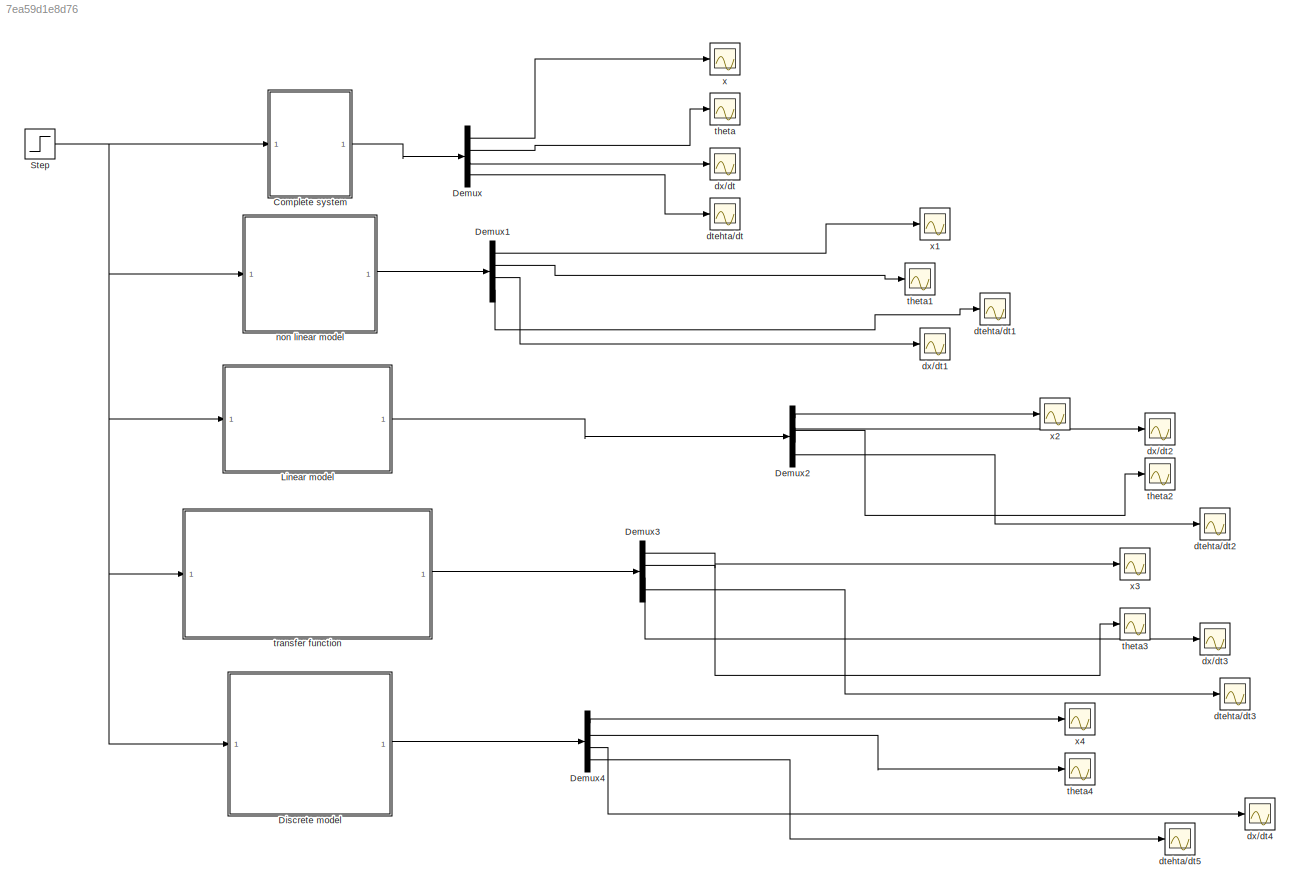
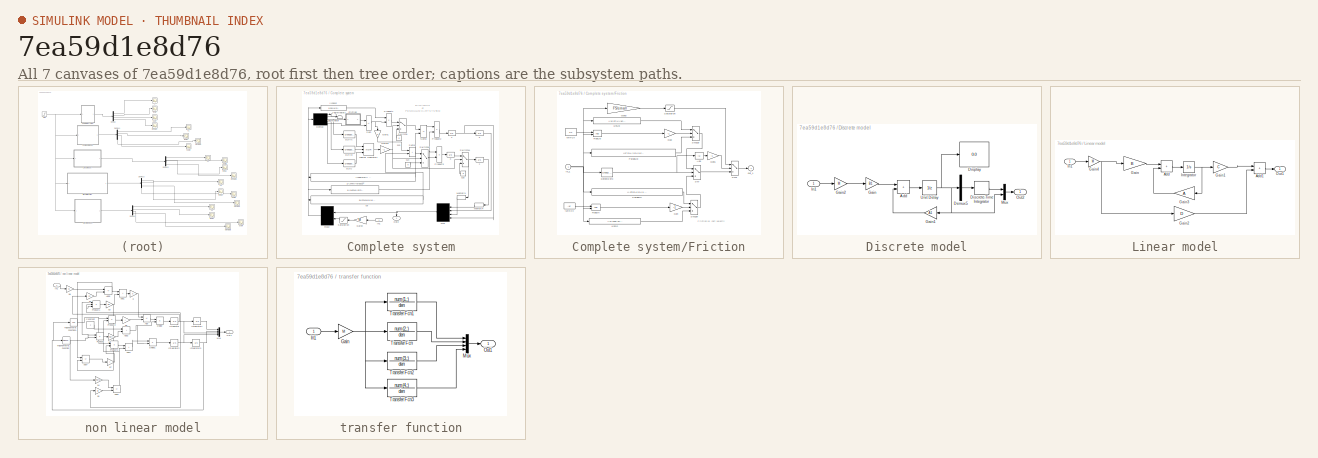
[diagram: thumbnail index - all 7 canvases of the model, root first then tree order]
MODEL mdl_7ea59d1e8d76
KIND model
CONFIG AbsTol = auto
CONFIG EnableMultiTasking = on
CONFIG FixedStep = 0.01
CONFIG MaxStep = auto
CONFIG MinStep = auto
CONFIG RelTol = 1e-6
CONFIG SampleTimeConstraint = Unconstrained
CONFIG SolverName = ode45
CONFIG StartTime = 0.0
CONFIG StopTime = 50
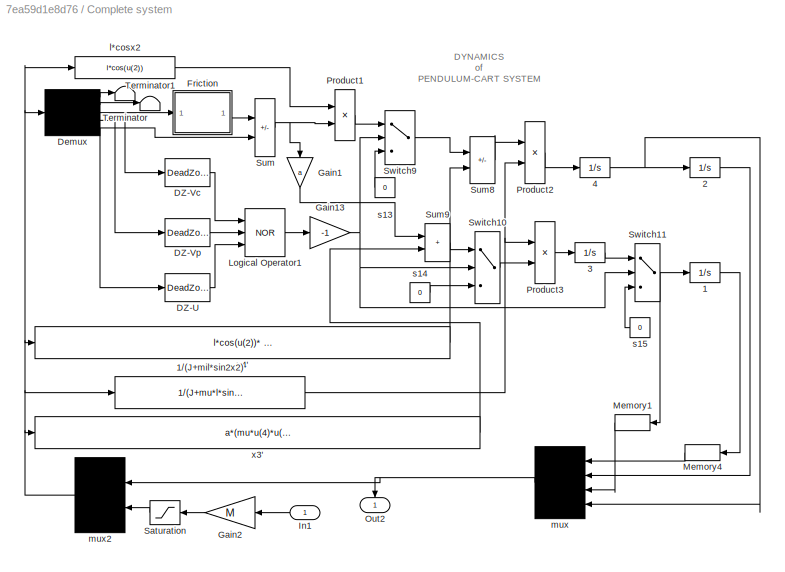
BLOCK [SubSystem] Complete system
  Ports = [1, 1]
  RequestExecContextInheritance = off
BLOCK [Integrator] Complete system/1
  Ports = [1, 1]
BLOCK [Fcn] Complete system/1//(J+mil*sin2x2)
  Expr = 1/(J+mu*l*sin(u[2])*sin(u[2]))
BLOCK [Integrator] Complete system/2
  InitialCondition = pi
  Ports = [1, 1]
BLOCK [Integrator] Complete system/3
  Ports = [1, 1]
BLOCK [Integrator] Complete system/4
  Ports = [1, 1]
BLOCK [DeadZone] Complete system/DZ-U
  LowerValue = -DZu
  UpperValue = DZu
BLOCK [DeadZone] Complete system/DZ-Vc
  LowerValue = -DZcv
  UpperValue = DZcv
BLOCK [DeadZone] Complete system/DZ-Vp
  LowerValue = -DZcp
  UpperValue = DZcp
BLOCK [Demux] Complete system/Demux
  DisplayOption = none
  Outputs = 5
  Ports = [1, 5]
BLOCK [SubSystem] Complete system/Friction
  NameLocation = top
  Ports = [1, 1]
  RequestExecContextInheritance = off
  ShowPortLabels = none
BLOCK [Constant] Complete system/Friction/-Min-Cv
  Value = -Xc
BLOCK [Abs] Complete system/Friction/Abs
BLOCK [DeadZone] Complete system/Friction/DetectZero
  LowerValue = -Z
  UpperValue = Z
BLOCK [Gain] Complete system/Friction/Gdn
  Gain = -1
  OutDataTypeStr = Inherit: Same as input
  ParamDataTypeStr = Inherit: Same as input
  SaturateOnIntegerOverflow = on
BLOCK [Gain] Complete system/Friction/Gdn1
  Gain = -1
  OutDataTypeStr = Inherit: Same as input
  ParamDataTypeStr = Inherit: Same as input
  SaturateOnIntegerOverflow = on
BLOCK [Gain] Complete system/Friction/Gdn3
  Gain = FS/small
  OutDataTypeStr = Inherit: Same as input
  ParamDataTypeStr = Inherit: Same as input
  SaturateOnIntegerOverflow = on
BLOCK [Gain] Complete system/Friction/Gup
  Gain = -1
  OutDataTypeStr = Inherit: Same as input
  ParamDataTypeStr = Inherit: Same as input
  SaturateOnIntegerOverflow = on
BLOCK [Fcn] Complete system/Friction/LinDn
  Expr = ((Yc-FCD)/Xc)*u(1)-FCD
BLOCK [Fcn] Complete system/Friction/LinUp
  Expr = ((Yc-FCU)/Xc)*u(1)+FCU
BLOCK [Constant] Complete system/Friction/Min-Cv
  Value = Xc
BLOCK [Fcn] Complete system/Friction/ParabDn
  Expr = ((-FSD+Yc)/(Xc*Xc))*u[1]*u(1)-2*((-FSD+Yc)/-Xc)*u(1)-FSD
BLOCK [Fcn] Complete system/Friction/ParabUp
  Expr = ((FSU-Yc)/(Xc*Xc))*u[1]*u(1)-2*((FSU-Yc)/Xc)*u(1)+FSU
BLOCK [RelationalOperator] Complete system/Friction/RopDn
  Ports = [2, 1]
BLOCK [RelationalOperator] Complete system/Friction/RopUp
  Ports = [2, 1]
BLOCK [Switch] Complete system/Friction/SW
BLOCK [Switch] Complete system/Friction/SW1
BLOCK [Switch] Complete system/Friction/SW1dn
BLOCK [Switch] Complete system/Friction/SW1up
BLOCK [Saturate] Complete system/Friction/Saturation
  LowerLimit = FSdl
  UpperLimit = FSul
BLOCK [Inport] Complete system/Friction/in_1
BLOCK [Outport] Complete system/Friction/out_1
  InitialOutput = 0
BLOCK [Gain] Complete system/Gain1
  Gain = a
  NameLocation = right
  OutDataTypeStr = Inherit: Same as input
  ParamDataTypeStr = Inherit: Same as input
  SaturateOnIntegerOverflow = on
BLOCK [Gain] Complete system/Gain13
  Gain = -1
  OutDataTypeStr = Inherit: Same as input
  ParamDataTypeStr = Inherit: Same as input
  SaturateOnIntegerOverflow = on
BLOCK [Gain] Complete system/Gain2
  Gain = M
  OutDataTypeStr = Inherit: Same as input
  ParamDataTypeStr = Inherit: Same as input
BLOCK [Inport] Complete system/In1
BLOCK [Logic] Complete system/Logical Operator1
  Inputs = 3
  Operator = NOR
  Ports = [3, 1]
BLOCK [Memory] Complete system/Memory1
BLOCK [Memory] Complete system/Memory4
BLOCK [Outport] Complete system/Out2
  NameLocation = right
BLOCK [Product] Complete system/Product1
  InputSameDT = on
  OutDataTypeStr = Inherit: Same as first input
  Ports = [2, 1]
  RndMeth = Zero
  SaturateOnIntegerOverflow = on
BLOCK [Product] Complete system/Product2
  InputSameDT = on
  OutDataTypeStr = Inherit: Same as first input
  Ports = [2, 1]
  RndMeth = Zero
  SaturateOnIntegerOverflow = on
BLOCK [Product] Complete system/Product3
  InputSameDT = on
  OutDataTypeStr = Inherit: Same as first input
  Ports = [2, 1]
  RndMeth = Zero
  SaturateOnIntegerOverflow = on
BLOCK [Saturate] Complete system/Saturation
  LowerLimit = -Um*M
  UpperLimit = Um*M
BLOCK [Sum] Complete system/Sum
  IconShape = rectangular
  InputSameDT = on
  Inputs = -+
  OutDataTypeStr = Inherit: Same as first input
  Ports = [2, 1]
  SaturateOnIntegerOverflow = on
BLOCK [Sum] Complete system/Sum8
  IconShape = rectangular
  InputSameDT = on
  Inputs = -+
  OutDataTypeStr = Inherit: Same as first input
  Ports = [2, 1]
  SaturateOnIntegerOverflow = on
BLOCK [Sum] Complete system/Sum9
  IconShape = rectangular
  InputSameDT = on
  OutDataTypeStr = Inherit: Same as first input
  Ports = [2, 1]
  SaturateOnIntegerOverflow = on
BLOCK [Switch] Complete system/Switch10
BLOCK [Switch] Complete system/Switch11
BLOCK [Switch] Complete system/Switch9
BLOCK [Terminator] Complete system/Terminator
BLOCK [Terminator] Complete system/Terminator1
BLOCK [Fcn] Complete system/l*cosx2
  Expr = l*cos(u(2))
BLOCK [Mux] Complete system/mux
  Ports = [4, 1]
BLOCK [Mux] Complete system/mux2
  Inputs = [4 1]
  Ports = [2, 1]
BLOCK [Constant] Complete system/s13
  NameLocation = top
  Value = 0
BLOCK [Constant] Complete system/s14
  NameLocation = top
  Value = 0
BLOCK [Constant] Complete system/s15
  NameLocation = top
  Value = 0
BLOCK [Fcn] Complete system/x3'
  Expr = a*(mu*u(4)*u(4)*sin(u(2)) )-l*cos(u(2))*(mu*g*sin(u(2))-fp*u(4))
BLOCK [Fcn] Complete system/x4'
  Expr = l*cos(u(2))* (-mu*u(4)*u(4)*sin(u(2))) + mu*g*sin(u(2))-fp*u(4)
BLOCK [Demux] Demux
  Ports = [1, 4]
BLOCK [Demux] Demux1
  Ports = [1, 4]
BLOCK [Demux] Demux2
  Ports = [1, 4]
BLOCK [Demux] Demux3
  Ports = [1, 4]
BLOCK [Demux] Demux4
  Ports = [1, 4]
BLOCK [SubSystem] Discrete model
  Ports = [1, 1]
  RequestExecContextInheritance = off
BLOCK [Sum] Discrete model/Add
  IconShape = rectangular
  Ports = [2, 1]
BLOCK [Demux] Discrete model/Demux5
  Outputs = 3
  Ports = [1, 3]
BLOCK [DiscreteIntegrator] Discrete model/Discrete-Time Integrator
  ICPrevOutput = DiscIntNeverNeededParam
  ICPrevScaledInput = DiscIntNeverNeededParam
  Ports = [1, 1]
  SampleTime = 0.1
BLOCK [Display] Discrete model/Display
  Decimation = 1
  Ports = [1]
BLOCK [Gain] Discrete model/Gain
  Gain = B1
  Multiplication = Matrix(K*u)
  SampleTime = 0.1
BLOCK [Gain] Discrete model/Gain1
  Gain = A1
  Multiplication = Matrix(K*u)
  NameLocation = top
  SampleTime = 0.1
BLOCK [Gain] Discrete model/Gain2
  Gain = M
  SampleTime = 0.1
BLOCK [Inport] Discrete model/In1
BLOCK [Mux] Discrete model/Mux
  DisplayOption = bar
  Inputs = 2
  Ports = [2, 1]
BLOCK [Outport] Discrete model/Out2
BLOCK [UnitDelay] Discrete model/Unit Delay
  HasFrameUpgradeWarning = on
  SampleTime = 0.1
BLOCK [SubSystem] Linear model
  Ports = [1, 1]
  RequestExecContextInheritance = off
BLOCK [Sum] Linear model/Add
  IconShape = rectangular
  Ports = [2, 1]
BLOCK [Sum] Linear model/Add1
  IconShape = rectangular
  Ports = [2, 1]
BLOCK [Gain] Linear model/Gain
  Gain = B
  Multiplication = Matrix(K*u)
BLOCK [Gain] Linear model/Gain1
  Gain = C
  Multiplication = Matrix(K*u)
BLOCK [Gain] Linear model/Gain2
  Gain = D
  Multiplication = Matrix(K*u)
BLOCK [Gain] Linear model/Gain3
  Gain = A
  Multiplication = Matrix(K*u)
  NameLocation = top
BLOCK [Gain] Linear model/Gain4
  Gain = M
BLOCK [Inport] Linear model/In1
BLOCK [Integrator] Linear model/Integrator
  Ports = [1, 1]
BLOCK [Outport] Linear model/Out1
BLOCK [Step] Step
  After = 0.3
  SampleTime = 0
BLOCK [Scope] dtehta//dt
  Floating = off
  NumInputPorts = 1
  Ports = [1]
  ScopeSpecificationString = C++SS(StrPVP('Location','[188, 390, 512, 629]'),StrPVP('Open','off'),MxPVP('AxesTitles',54,'struct(''axes1'',''%<SignalLabel>'')'),MxPVP('ScopeGraphics',57,'struct(''FigureColor'',''[0.5 0.5 0.5]'',''AxesColor'',''[0 0 0]'',''AxesTickColor'',''[1 1 1]'',''LineColors'',''[1 1 0;1 0 1;0 1 1;1 0 0;0 1 0;0 0 1]'',''LineStyles'',''-|-|-|-|-|-'',''LineWidths'',''[0.5 0.5 0.5 0.5 0.5 0.5]'',''MarkerStyle...<+286ch>  <repeated x4 — deduplicated; at blocks: dtehta/dt, theta1, theta2, theta3>
BLOCK [Scope] dtehta//dt1
  Floating = off
  NumInputPorts = 1
  Ports = [1]
  ScopeSpecificationString = C++SS(StrPVP('Location','[188, 390, 512, 629]'),StrPVP('Open','off'),MxPVP('AxesTitles',54,'struct(''axes1'',''%<SignalLabel>'')'),MxPVP('ScopeGraphics',57,'struct(''FigureColor'',''[0.5 0.5 0.5]'',''AxesColor'',''[0 0 0]'',''AxesTickColor'',''[1 1 1]'',''LineColors'',''[1 1 0;1 0 1;0 1 1;1 0 0;0 1 0;0 0 1]'',''LineStyles'',''-|-|-|-|-|-'',''LineWidths'',''[0.5 0.5 0.5 0.5 0.5 0.5]'',''MarkerStyle...<+287ch>
BLOCK [Scope] dtehta//dt2
  Floating = off
  NumInputPorts = 1
  Ports = [1]
  ScopeSpecificationString = C++SS(StrPVP('Location','[188, 390, 512, 629]'),StrPVP('Open','off'),MxPVP('AxesTitles',54,'struct(''axes1'',''%<SignalLabel>'')'),MxPVP('ScopeGraphics',57,'struct(''FigureColor'',''[0.5 0.5 0.5]'',''AxesColor'',''[0 0 0]'',''AxesTickColor'',''[1 1 1]'',''LineColors'',''[1 1 0;1 0 1;0 1 1;1 0 0;0 1 0;0 0 1]'',''LineStyles'',''-|-|-|-|-|-'',''LineWidths'',''[0.5 0.5 0.5 0.5 0.5 0.5]'',''MarkerStyle...<+287ch>
BLOCK [Scope] dtehta//dt3
  Floating = off
  NumInputPorts = 1
  Ports = [1]
  ScopeSpecificationString = Simulink.scopes.TimeScopeBlockCfg('CurrentConfiguration', extmgr.ConfigurationSet(extmgr.Configuration('Core','General UI',true),extmgr.Configuration('Core','Source UI',true),extmgr.Configuration('Sources','WiredSimulink',true,'DataLogging',true,'DataLoggingVariableName','dtheta3','DataLoggingLimitDataPoints',true,'DataLoggingSaveFormat','Array','DataLoggingDecimation','1','DataLoggingDecimateData...<+1683ch>
BLOCK [Scope] dtehta//dt5
  Floating = off
  NumInputPorts = 1
  Ports = [1]
  ScopeSpecificationString = Simulink.scopes.TimeScopeBlockCfg('CurrentConfiguration', extmgr.ConfigurationSet(extmgr.Configuration('Core','General UI',true),extmgr.Configuration('Core','Source UI',true),extmgr.Configuration('Sources','WiredSimulink',true,'DataLogging',true,'DataLoggingVariableName','dtheta4','DataLoggingLimitDataPoints',true,'DataLoggingSaveFormat','Array','DataLoggingDecimation','1','DataLoggingDecimateData...<+1685ch>
BLOCK [Scope] dx//dt
  Floating = off
  NumInputPorts = 1
  Ports = [1]
  ScopeSpecificationString = C++SS(StrPVP('Location','[188, 390, 512, 629]'),StrPVP('Open','off'),MxPVP('AxesTitles',54,'struct(''axes1'',''%<SignalLabel>'')'),MxPVP('ScopeGraphics',57,'struct(''FigureColor'',''[0.5 0.5 0.5]'',''AxesColor'',''[0 0 0]'',''AxesTickColor'',''[1 1 1]'',''LineColors'',''[1 1 0;1 0 1;0 1 1;1 0 0;0 1 0;0 0 1]'',''LineStyles'',''-|-|-|-|-|-'',''LineWidths'',''[0.5 0.5 0.5 0.5 0.5 0.5]'',''MarkerStyle...<+282ch>
BLOCK [Scope] dx//dt1
  Floating = off
  NumInputPorts = 1
  Ports = [1]
  ScopeSpecificationString = C++SS(StrPVP('Location','[188, 390, 512, 629]'),StrPVP('Open','off'),MxPVP('AxesTitles',54,'struct(''axes1'',''%<SignalLabel>'')'),MxPVP('ScopeGraphics',57,'struct(''FigureColor'',''[0.5 0.5 0.5]'',''AxesColor'',''[0 0 0]'',''AxesTickColor'',''[1 1 1]'',''LineColors'',''[1 1 0;1 0 1;0 1 1;1 0 0;0 1 0;0 0 1]'',''LineStyles'',''-|-|-|-|-|-'',''LineWidths'',''[0.5 0.5 0.5 0.5 0.5 0.5]'',''MarkerStyle...<+283ch>  <repeated x3 — deduplicated; at blocks: dx/dt1, dx/dt2, dx/dt3>
BLOCK [Scope] dx//dt2
  Floating = off
  NumInputPorts = 1
  Ports = [1]
BLOCK [Scope] dx//dt3
  Floating = off
  NumInputPorts = 1
  Ports = [1]
BLOCK [Scope] dx//dt4
  Floating = off
  NumInputPorts = 1
  Ports = [1]
  ScopeSpecificationString = Simulink.scopes.TimeScopeBlockCfg('CurrentConfiguration', extmgr.ConfigurationSet(extmgr.Configuration('Core','General UI',true),extmgr.Configuration('Core','Source UI',true),extmgr.Configuration('Sources','WiredSimulink',true,'DataLogging',true,'DataLoggingVariableName','dx4','DataLoggingLimitDataPoints',true,'DataLoggingSaveFormat','Array','DataLoggingDecimation','1','DataLoggingDecimateData',tr...<+1685ch>
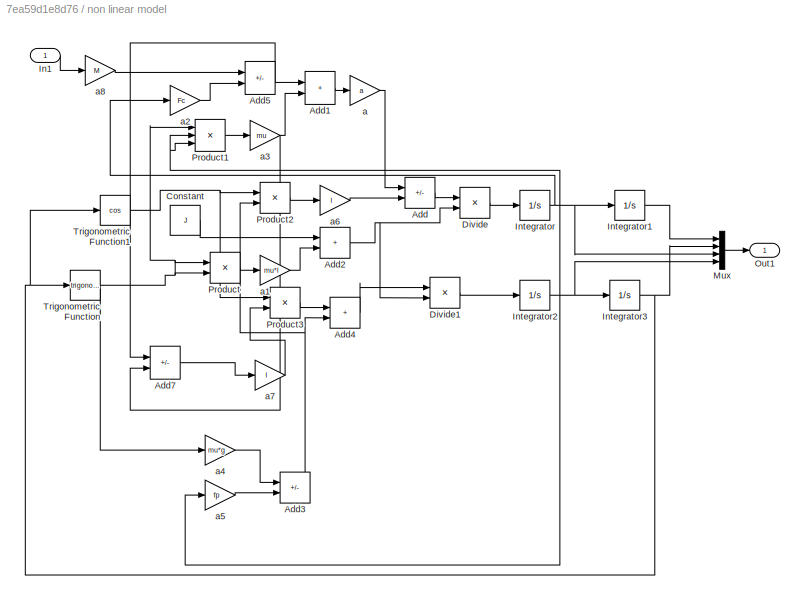
BLOCK [SubSystem] non linear model
  Ports = [1, 1]
  RequestExecContextInheritance = off
BLOCK [Sum] non linear model/Add
  IconShape = rectangular
  Inputs = +-
  Ports = [2, 1]
BLOCK [Sum] non linear model/Add1
  IconShape = rectangular
  Ports = [2, 1]
BLOCK [Sum] non linear model/Add2
  IconShape = rectangular
  Ports = [2, 1]
BLOCK [Sum] non linear model/Add3
  IconShape = rectangular
  Inputs = +-
  Ports = [2, 1]
BLOCK [Sum] non linear model/Add4
  IconShape = rectangular
  Ports = [2, 1]
BLOCK [Sum] non linear model/Add5
  IconShape = rectangular
  Inputs = +-
  Ports = [2, 1]
BLOCK [Sum] non linear model/Add7
  IconShape = rectangular
  Inputs = -+
  Ports = [2, 1]
BLOCK [Constant] non linear model/Constant
  Value = J
BLOCK [Product] non linear model/Divide
  Inputs = */
  Ports = [2, 1]
BLOCK [Product] non linear model/Divide1
  Inputs = */
  Ports = [2, 1]
BLOCK [Inport] non linear model/In1
BLOCK [Integrator] non linear model/Integrator
  Ports = [1, 1]
BLOCK [Integrator] non linear model/Integrator1
  Ports = [1, 1]
BLOCK [Integrator] non linear model/Integrator2
  Ports = [1, 1]
BLOCK [Integrator] non linear model/Integrator3
  InitialCondition = pi
  Ports = [1, 1]
BLOCK [Mux] non linear model/Mux
  DisplayOption = bar
  Ports = [4, 1]
BLOCK [Outport] non linear model/Out1
BLOCK [Product] non linear model/Product
  Ports = [2, 1]
  RndMeth = Zero
BLOCK [Product] non linear model/Product1
  Inputs = 3
  Ports = [3, 1]
  RndMeth = Zero
BLOCK [Product] non linear model/Product2
  Ports = [2, 1]
  RndMeth = Zero
BLOCK [Product] non linear model/Product3
  Ports = [2, 1]
  RndMeth = Zero
BLOCK [Trigonometry] non linear model/Trigonometric Function
  Ports = [1, 1]
BLOCK [Trigonometry] non linear model/Trigonometric Function1
  Operator = cos
  Ports = [1, 1]
BLOCK [Gain] non linear model/a
  Gain = a
BLOCK [Gain] non linear model/a1
  Gain = mu*l
BLOCK [Gain] non linear model/a2
  Gain = Fc
BLOCK [Gain] non linear model/a3
  Gain = mu
BLOCK [Gain] non linear model/a4
  Gain = mu*g
BLOCK [Gain] non linear model/a5
  Gain = fp
BLOCK [Gain] non linear model/a6
  Gain = l
BLOCK [Gain] non linear model/a7
  Gain = l
BLOCK [Gain] non linear model/a8
  Gain = M
BLOCK [Scope] theta
  Floating = off
  NumInputPorts = 1
  Ports = [1]
  ScopeSpecificationString = C++SS(StrPVP('Location','[188, 390, 512, 629]'),StrPVP('Open','off'),MxPVP('AxesTitles',54,'struct(''axes1'',''%<SignalLabel>'')'),MxPVP('ScopeGraphics',57,'struct(''FigureColor'',''[0.5 0.5 0.5]'',''AxesColor'',''[0 0 0]'',''AxesTickColor'',''[1 1 1]'',''LineColors'',''[1 1 0;1 0 1;0 1 1;1 0 0;0 1 0;0 0 1]'',''LineStyles'',''-|-|-|-|-|-'',''LineWidths'',''[0.5 0.5 0.5 0.5 0.5 0.5]'',''MarkerStyle...<+285ch>
BLOCK [Scope] theta1
  Floating = off
  NumInputPorts = 1
  Ports = [1]
BLOCK [Scope] theta2
  Floating = off
  NumInputPorts = 1
  Ports = [1]
BLOCK [Scope] theta3
  Floating = off
  NumInputPorts = 1
  Ports = [1]
BLOCK [Scope] theta4
  Floating = off
  NumInputPorts = 1
  Ports = [1]
  ScopeSpecificationString = Simulink.scopes.TimeScopeBlockCfg('CurrentConfiguration', extmgr.ConfigurationSet(extmgr.Configuration('Core','General UI',true),extmgr.Configuration('Core','Source UI',true),extmgr.Configuration('Sources','WiredSimulink',true,'DataLogging',true,'DataLoggingVariableName','theta4','DataLoggingLimitDataPoints',true,'DataLoggingSaveFormat','Array','DataLoggingDecimation','1','DataLoggingDecimateData'...<+1684ch>
BLOCK [SubSystem] transfer function
  Ports = [1, 1]
  RequestExecContextInheritance = off
BLOCK [Gain] transfer function/Gain
  Gain = M
BLOCK [Inport] transfer function/In1
BLOCK [Mux] transfer function/Mux
  DisplayOption = bar
  Ports = [4, 1]
BLOCK [Outport] transfer function/Out1
BLOCK [TransferFcn] transfer function/Transfer Fcn
  Denominator = den
  Numerator = num(2,:)
BLOCK [TransferFcn] transfer function/Transfer Fcn1
  Denominator = den
  Numerator = num(1,:)
BLOCK [TransferFcn] transfer function/Transfer Fcn2
  Denominator = den
  Numerator = num(3,:)
BLOCK [TransferFcn] transfer function/Transfer Fcn3
  Denominator = den
  Numerator = num(4,:)
BLOCK [Scope] x
  Floating = off
  NumInputPorts = 1
  Ports = [1]
  ScopeSpecificationString = C++SS(StrPVP('Location','[188, 390, 512, 629]'),StrPVP('Open','off'),MxPVP('AxesTitles',54,'struct(''axes1'',''%<SignalLabel>'')'),MxPVP('ScopeGraphics',57,'struct(''FigureColor'',''[0.5 0.5 0.5]'',''AxesColor'',''[0 0 0]'',''AxesTickColor'',''[1 1 1]'',''LineColors'',''[1 1 0;1 0 1;0 1 1;1 0 0;0 1 0;0 0 1]'',''LineStyles'',''-|-|-|-|-|-'',''LineWidths'',''[0.5 0.5 0.5 0.5 0.5 0.5]'',''MarkerStyle...<+281ch>
BLOCK [Scope] x1
  Floating = off
  NumInputPorts = 1
  Ports = [1]
  ScopeSpecificationString = Simulink.scopes.TimeScopeBlockCfg('CurrentConfiguration', extmgr.ConfigurationSet(extmgr.Configuration('Core','General UI',true),extmgr.Configuration('Core','Source UI',true),extmgr.Configuration('Sources','WiredSimulink',true,'DataLogging',true,'DataLoggingVariableName','x1','DataLoggingLimitDataPoints',true,'DataLoggingSaveFormat','Array','DataLoggingDecimation','1','DataLoggingDecimateData',tru...<+910ch>
BLOCK [Scope] x2
  Floating = off
  NumInputPorts = 1
  Ports = [1]
  ScopeSpecificationString = C++SS(StrPVP('Location','[188, 390, 512, 629]'),StrPVP('Open','off'),MxPVP('AxesTitles',54,'struct(''axes1'',''%<SignalLabel>'')'),MxPVP('ScopeGraphics',57,'struct(''FigureColor'',''[0.5 0.5 0.5]'',''AxesColor'',''[0 0 0]'',''AxesTickColor'',''[1 1 1]'',''LineColors'',''[1 1 0;1 0 1;0 1 1;1 0 0;0 1 0;0 0 1]'',''LineStyles'',''-|-|-|-|-|-'',''LineWidths'',''[0.5 0.5 0.5 0.5 0.5 0.5]'',''MarkerStyle...<+282ch>
BLOCK [Scope] x3
  Floating = off
  NumInputPorts = 1
  Ports = [1]
  ScopeSpecificationString = C++SS(StrPVP('Location','[1, 48, 1441, 859]'),StrPVP('Open','off'),MxPVP('AxesTitles',54,'struct(''axes1'',''%<SignalLabel>'')'),MxPVP('ScopeGraphics',57,'struct(''FigureColor'',''[0.5 0.5 0.5]'',''AxesColor'',''[0 0 0]'',''AxesTickColor'',''[1 1 1]'',''LineColors'',''[1 1 0;1 0 1;0 1 1;1 0 0;0 1 0;0 0 1]'',''LineStyles'',''-|-|-|-|-|-'',''LineWidths'',''[0.5 0.5 0.5 0.5 0.5 0.5]'',''MarkerStyles'...<+280ch>
BLOCK [Scope] x4
  Floating = off
  NumInputPorts = 1
  Ports = [1]
  ScopeSpecificationString = Simulink.scopes.TimeScopeBlockCfg('CurrentConfiguration', extmgr.ConfigurationSet(extmgr.Configuration('Core','General UI',true),extmgr.Configuration('Core','Source UI',true),extmgr.Configuration('Sources','WiredSimulink',true,'DataLogging',true,'DataLoggingVariableName','x4','DataLoggingLimitDataPoints',true,'DataLoggingSaveFormat','Array','DataLoggingDecimation','1','DataLoggingDecimateData',tru...<+1690ch>
ANNOTATION Complete system: DYNAMICS of PENDULUM-CART SYSTEM
ANNOTATION Complete system/Friction: Friction vs. cart velocity
NET Complete system/1//(J+mil*sin2x2):1 -> Complete system/Product2:2, Complete system/Product3:1
LINE Complete system/1:1 -> Complete system/Memory4:1
LINE Complete system/2:1 -> Complete system/mux:2
LINE Complete system/3:1 -> Complete system/Switch11:1
NET Complete system/4:1 -> Complete system/2:1, Complete system/mux:4
LINE Complete system/DZ-U:1 -> Complete system/Logical Operator1:3
LINE Complete system/DZ-Vc:1 -> Complete system/Logical Operator1:1
LINE Complete system/DZ-Vp:1 -> Complete system/Logical Operator1:2
LINE Complete system/Demux:1 -> Complete system/Terminator:1
LINE Complete system/Demux:2 -> Complete system/Terminator1:1
NET Complete system/Demux:3 -> Complete system/DZ-Vc:1, Complete system/Friction:1
LINE Complete system/Demux:4 -> Complete system/DZ-Vp:1
NET Complete system/Demux:5 -> Complete system/DZ-U:1, Complete system/Sum:2
LINE Complete system/Friction/-Min-Cv:1 -> Complete system/Friction/RopDn:1
LINE Complete system/Friction/Abs:1 -> Complete system/Friction/Gdn1:1
NET Complete system/Friction/DetectZero:1 -> Complete system/Friction/Abs:1, Complete system/Friction/SW:2
LINE Complete system/Friction/Gdn1:1 -> Complete system/Friction/SW1:2
LINE Complete system/Friction/Gdn3:1 -> Complete system/Friction/Saturation:1
LINE Complete system/Friction/Gdn:1 -> Complete system/Friction/SW1dn:2
LINE Complete system/Friction/Gup:1 -> Complete system/Friction/SW1up:2
LINE Complete system/Friction/LinDn:1 -> Complete system/Friction/SW1dn:3
LINE Complete system/Friction/LinUp:1 -> Complete system/Friction/SW1up:1
LINE Complete system/Friction/Min-Cv:1 -> Complete system/Friction/RopUp:1
LINE Complete system/Friction/ParabDn:1 -> Complete system/Friction/SW1dn:1
LINE Complete system/Friction/ParabUp:1 -> Complete system/Friction/SW1up:3
LINE Complete system/Friction/RopDn:1 -> Complete system/Friction/Gdn:1
LINE Complete system/Friction/RopUp:1 -> Complete system/Friction/Gup:1
LINE Complete system/Friction/SW1:1 -> Complete system/Friction/out_1:1
LINE Complete system/Friction/SW1dn:1 -> Complete system/Friction/SW:3
LINE Complete system/Friction/SW1up:1 -> Complete system/Friction/SW:1
LINE Complete system/Friction/SW:1 -> Complete system/Friction/SW1:3
LINE Complete system/Friction/Saturation:1 -> Complete system/Friction/SW1:1
NET Complete system/Friction/in_1:1 -> Complete system/Friction/DetectZero:1, Complete system/Friction/Gdn3:1, Complete system/Friction/LinDn:1, Complete system/Friction/LinUp:1, Complete system/Friction/ParabDn:1, Complete system/Friction/ParabUp:1, Complete system/Friction/RopDn:2, Complete system/Friction/RopUp:2
LINE Complete system/Friction:1 -> Complete system/Sum:1
NET Complete system/Gain13:1 -> Complete system/Switch10:2, Complete system/Switch11:2, Complete system/Switch9:2
LINE Complete system/Gain1:1 -> Complete system/Sum9:1
LINE Complete system/Gain2:1 -> Complete system/Saturation:1
LINE Complete system/In1:1 -> Complete system/Gain2:1
LINE Complete system/Logical Operator1:1 -> Complete system/Gain13:1
LINE Complete system/Memory1:1 -> Complete system/mux:3
LINE Complete system/Memory4:1 -> Complete system/mux:1
LINE Complete system/Product1:1 -> Complete system/Switch9:1
LINE Complete system/Product2:1 -> Complete system/4:1
LINE Complete system/Product3:1 -> Complete system/3:1
LINE Complete system/Saturation:1 -> Complete system/mux2:2
LINE Complete system/Sum8:1 -> Complete system/Product2:1
LINE Complete system/Sum9:1 -> Complete system/Switch10:1
NET Complete system/Sum:1 -> Complete system/Gain1:1, Complete system/Product1:2
LINE Complete system/Switch10:1 -> Complete system/Product3:2
NET Complete system/Switch11:1 -> Complete system/1:1, Complete system/Memory1:1
LINE Complete system/Switch9:1 -> Complete system/Sum8:1
LINE Complete system/l*cosx2:1 -> Complete system/Product1:1
NET Complete system/mux2:1 -> Complete system/1//(J+mil*sin2x2):1, Complete system/Demux:1, Complete system/l*cosx2:1, Complete system/x3':1, Complete system/x4':1
NET Complete system/mux:1 -> Complete system/Out2:1, Complete system/mux2:1
LINE Complete system/s13:1 -> Complete system/Switch9:3
LINE Complete system/s14:1 -> Complete system/Switch10:3
LINE Complete system/s15:1 -> Complete system/Switch11:3
LINE Complete system/x3':1 -> Complete system/Sum9:2
LINE Complete system/x4':1 -> Complete system/Sum8:2
LINE Complete system:1 -> Demux:1
LINE Demux1:1 -> x1:1
LINE Demux1:2 -> theta1:1
LINE Demux1:3 -> dx//dt1:1
LINE Demux1:4 -> dtehta//dt1:1
LINE Demux2:1 -> x2:1
LINE Demux2:2 -> theta2:1
LINE Demux2:3 -> dx//dt2:1
LINE Demux2:4 -> dtehta//dt2:1
LINE Demux3:1 -> x3:1
LINE Demux3:2 -> theta3:1
LINE Demux3:3 -> dx//dt3:1
LINE Demux3:4 -> dtehta//dt3:1
LINE Demux4:1 -> x4:1
LINE Demux4:2 -> theta4:1
LINE Demux4:3 -> dx//dt4:1
LINE Demux4:4 -> dtehta//dt5:1
LINE Demux:1 -> x:1
LINE Demux:2 -> theta:1
LINE Demux:3 -> dx//dt:1
LINE Demux:4 -> dtehta//dt:1
LINE Discrete model/Add:1 -> Discrete model/Unit Delay:1
LINE Discrete model/Demux5:2 -> Discrete model/Discrete-Time Integrator:1
LINE Discrete model/Discrete-Time Integrator:1 -> Discrete model/Mux:1
LINE Discrete model/Gain1:1 -> Discrete model/Add:2
LINE Discrete model/Gain2:1 -> Discrete model/Gain:1
LINE Discrete model/Gain:1 -> Discrete model/Add:1
LINE Discrete model/In1:1 -> Discrete model/Gain2:1
LINE Discrete model/Mux:1 -> Discrete model/Out2:1
NET Discrete model/Unit Delay:1 -> Discrete model/Demux5:1, Discrete model/Display:1, Discrete model/Gain1:1, Discrete model/Mux:2
LINE Discrete model:1 -> Demux4:1
LINE Linear model/Add1:1 -> Linear model/Out1:1
LINE Linear model/Add:1 -> Linear model/Integrator:1
LINE Linear model/Gain1:1 -> Linear model/Add1:1
LINE Linear model/Gain2:1 -> Linear model/Add1:2
LINE Linear model/Gain3:1 -> Linear model/Add:2
NET Linear model/Gain4:1 -> Linear model/Gain2:1, Linear model/Gain:1
LINE Linear model/Gain:1 -> Linear model/Add:1
LINE Linear model/In1:1 -> Linear model/Gain4:1
NET Linear model/Integrator:1 -> Linear model/Gain1:1, Linear model/Gain3:1
LINE Linear model:1 -> Demux2:1
NET Step:1 -> Complete system:1, Discrete model:1, Linear model:1, non linear model:1, transfer function:1
LINE non linear model/Add1:1 -> non linear model/a:1
NET non linear model/Add2:1 -> non linear model/Divide1:2, non linear model/Divide:2
NET non linear model/Add3:1 -> non linear model/Add4:2, non linear model/Product2:2
LINE non linear model/Add4:1 -> non linear model/Divide1:1
NET non linear model/Add5:1 -> non linear model/Add1:1, non linear model/Add7:1
LINE non linear model/Add7:1 -> non linear model/a7:1
LINE non linear model/Add:1 -> non linear model/Divide:1
LINE non linear model/Constant:1 -> non linear model/Add2:1
LINE non linear model/Divide1:1 -> non linear model/Integrator2:1
LINE non linear model/Divide:1 -> non linear model/Integrator:1
LINE non linear model/In1:1 -> non linear model/a8:1
LINE non linear model/Integrator1:1 -> non linear model/Mux:1
NET non linear model/Integrator2:1 -> non linear model/Integrator3:1, non linear model/Mux:4, non linear model/Product1:2, non linear model/Product1:3, non linear model/a5:1
NET non linear model/Integrator3:1 -> non linear model/Mux:2, non linear model/Trigonometric Function1:1, non linear model/Trigonometric Function:1
NET non linear model/Integrator:1 -> non linear model/Integrator1:1, non linear model/Mux:3, non linear model/a2:1
LINE non linear model/Mux:1 -> non linear model/Out1:1
LINE non linear model/Product1:1 -> non linear model/a3:1
LINE non linear model/Product2:1 -> non linear model/a6:1
LINE non linear model/Product3:1 -> non linear model/Add4:1
LINE non linear model/Product:1 -> non linear model/a1:1
NET non linear model/Trigonometric Function1:1 -> non linear model/Product2:1, non linear model/Product3:1
NET non linear model/Trigonometric Function:1 -> non linear model/Product1:1, non linear model/Product:1, non linear model/Product:2, non linear model/a4:1
LINE non linear model/a1:1 -> non linear model/Add2:2
LINE non linear model/a2:1 -> non linear model/Add5:2
NET non linear model/a3:1 -> non linear model/Add1:2, non linear model/Add7:2
LINE non linear model/a4:1 -> non linear model/Add3:1
LINE non linear model/a5:1 -> non linear model/Add3:2
LINE non linear model/a6:1 -> non linear model/Add:2
LINE non linear model/a7:1 -> non linear model/Product3:2
LINE non linear model/a8:1 -> non linear model/Add5:1
LINE non linear model/a:1 -> non linear model/Add:1
LINE non linear model:1 -> Demux1:1
NET transfer function/Gain:1 -> transfer function/Transfer Fcn1:1, transfer function/Transfer Fcn2:1, transfer function/Transfer Fcn3:1, transfer function/Transfer Fcn:1
LINE transfer function/In1:1 -> transfer function/Gain:1
LINE transfer function/Mux:1 -> transfer function/Out1:1
LINE transfer function/Transfer Fcn1:1 -> transfer function/Mux:1
LINE transfer function/Transfer Fcn2:1 -> transfer function/Mux:3
LINE transfer function/Transfer Fcn3:1 -> transfer function/Mux:4
LINE transfer function/Transfer Fcn:1 -> transfer function/Mux:2
LINE transfer function:1 -> Demux3:1
note: NET lines group one-source signal fan-out (src -> all destinations, sorted); 1:1 wires keep LINE
